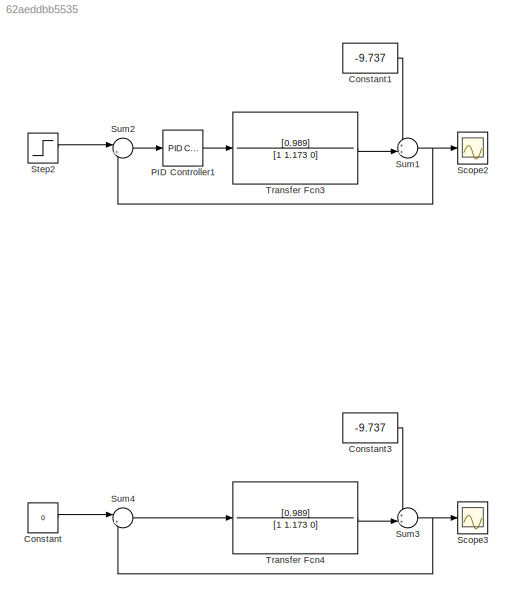
MODEL slx_62aeddbb5535
KIND model
CONFIG AbsTol = 1e-8
CONFIG EnableMultiTasking = off
CONFIG FixedStep = auto
CONFIG MaxStep = auto
CONFIG MinStep = auto
CONFIG RelTol = 1e-8
CONFIG SampleTimeConstraint = Unconstrained
CONFIG SolverName = VariableStepAuto
CONFIG StartTime = 0.0
CONFIG StopTime = 15
BLOCK [Constant] Constant
  Value = 0
BLOCK [Constant] Constant1
  Value = -9.737
BLOCK [Constant] Constant3
  Value = -9.737
BLOCK [Reference] PID Controller1  REF=slpidlib/PID Controller
  LibrarySourceBlock = simulink/Continuous/PID Controller
  SourceBlock = slpidlib/PID Controller
  SourceType = PID 1dof
BLOCK [Scope] Scope2
  Floating = off
  NumInputPorts = 1
  ScopeSpecificationString = Simulink.scopes.TimeScopeBlockCfg('CurrentConfiguration', extmgr.ConfigurationSet(extmgr.Configuration('Core','General UI',true,'FigureColor',[1 1 1]),extmgr.Configuration('Core','Source UI',true),extmgr.Configuration('Sources','WiredSimulink',true,'DataLoggingVariableName','ScopeData2'),extmgr.Configuration('Visuals','Time Domain',true,'SerializedDisplays',{struct('MinYLimReal','-10.73137','MaxYL...<+1700ch>
BLOCK [Scope] Scope3
  Floating = off
  NumInputPorts = 1
  ScopeSpecificationString = Simulink.scopes.TimeScopeBlockCfg('CurrentConfiguration', extmgr.ConfigurationSet(extmgr.Configuration('Core','General UI',true,'FigureColor',[1 1 1]),extmgr.Configuration('Core','Source UI',true),extmgr.Configuration('Sources','WiredSimulink',true,'DataLoggingVariableName','ScopeData1'),extmgr.Configuration('Visuals','Time Domain',true,'SerializedDisplays',{struct('MinYLimReal','-10.73137','MaxYL...<+1700ch>
BLOCK [Step] Step2
  After = 0
  SampleTime = 0
BLOCK [Sum] Sum1
  Inputs = ++|
BLOCK [Sum] Sum2
  Inputs = |+-
BLOCK [Sum] Sum3
  Inputs = ++|
BLOCK [Sum] Sum4
  Inputs = |+-
BLOCK [TransferFcn] Transfer Fcn3
  Denominator = [1 1.173 0]
  Numerator = [0.989]
BLOCK [TransferFcn] Transfer Fcn4
  Denominator = [1 1.173 0]
  Numerator = [0.989]
LINE Constant1:1 -> Sum1:1
LINE Constant3:1 -> Sum3:1
LINE Constant:1 -> Sum4:1
LINE PID Controller1:1 -> Transfer Fcn3:1
LINE Step2:1 -> Sum2:1
NET Sum1:1 -> Scope2:1, Sum2:2
LINE Sum2:1 -> PID Controller1:1
NET Sum3:1 -> Scope3:1, Sum4:2
LINE Sum4:1 -> Transfer Fcn4:1
LINE Transfer Fcn3:1 -> Sum1:2
LINE Transfer Fcn4:1 -> Sum3:2
note: NET lines group one-source signal fan-out (src -> all destinations, sorted); 1:1 wires keep LINE
